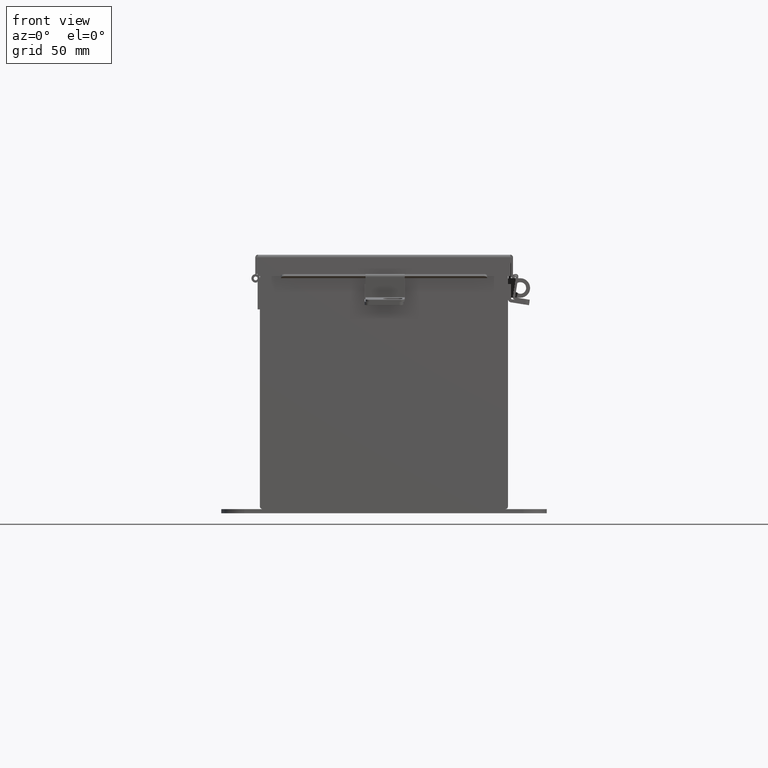
[diagram: clean part render]
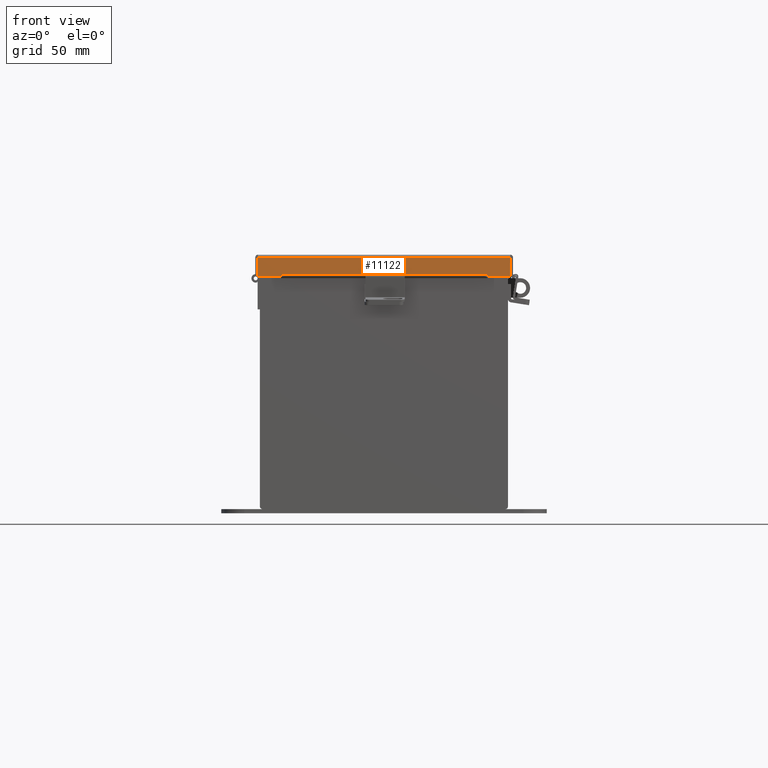
[diagram: same view with one face highlighted and labeled with its STEP entity id]
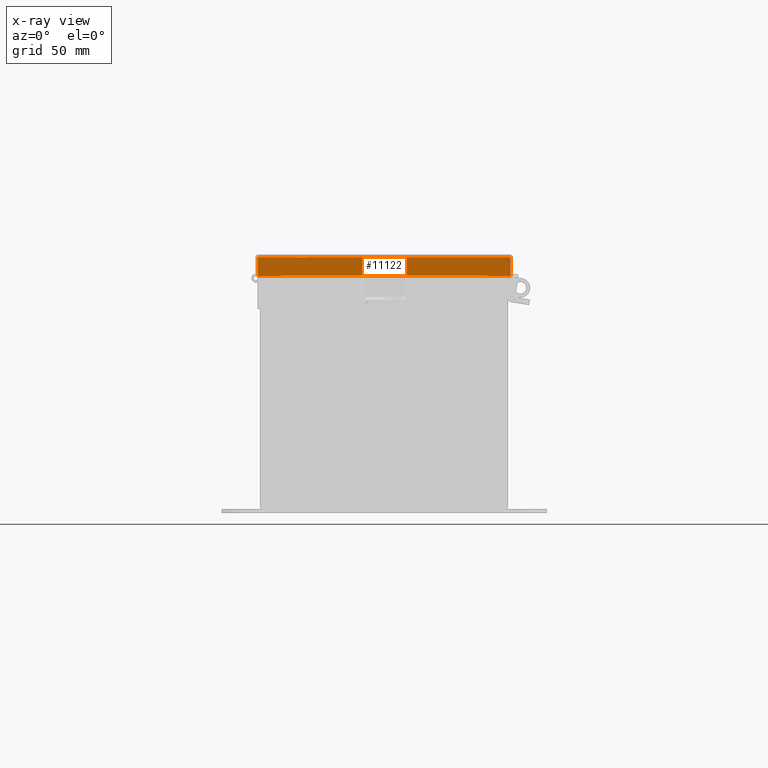
[diagram: x-ray of the same camera — body ghosted, the highlighted face saturated]
A machine part, front view. The second image highlights one B-rep face of the part: STEP entity #11122.
The next image is the same camera in x-ray: the body ghosted, the highlighted face saturated — about 0% of this face is hidden behind the body in this view.
In plain terms, the highlighted planar face has unit normal (0, 1, -0).
Its self-contained STEP definition (entity closure, byte-faithful):
#439 = CARTESIAN_POINT ( 'NONE',  ( -6.402768735150616900E-018, -9.156250000000001800, 0.6122999999999994000 ) ) ;
#903 = DIRECTION ( 'NONE',  ( 1.735493991486217300E-029, -3.569293475308519000E-015, 1.000000000000000000 ) ) ;
#996 = CARTESIAN_POINT ( 'NONE',  ( 3.324478932188146700, -9.156250000000001800, 0.5967115427318793200 ) ) ;
#1317 = LINE ( 'NONE', #2682, #12685 ) ;
#1505 = VECTOR ( 'NONE', #9911, 39.37007874015748100 ) ;
#1529 = LINE ( 'NONE', #18412, #4982 ) ;
#2145 = VECTOR ( 'NONE', #16462, 39.37007874015748100 ) ;
#2682 = CARTESIAN_POINT ( 'NONE',  ( -6.402768735150616900E-018, -9.156250000000001800, 0.6122999999999994000 ) ) ;
#3353 = VERTEX_POINT ( 'NONE', #14474 ) ;
#4186 = DIRECTION ( 'NONE',  ( -1.000000000000000000, 1.276935718578432000E-030, 8.216084191471054600E-018 ) ) ;
#4283 = VERTEX_POINT ( 'NONE', #9801 ) ;
#4518 = CARTESIAN_POINT ( 'NONE',  ( -4.074478932188157800, -9.156250000000000000, -1.092739197465705300E-015 ) ) ;
#4982 = VECTOR ( 'NONE', #15321, 39.37007874015748100 ) ;
#5559 = CARTESIAN_POINT ( 'NONE',  ( 4.074478932188161400, -9.156250000000001800, 0.6123000000000005100 ) ) ;
#5599 = VECTOR ( 'NONE', #11989, 39.37007874015748100 ) ;
#6342 = EDGE_CURVE ( 'NONE', #13516, #3353, #1317, .T. ) ;
#7089 = ORIENTED_EDGE ( 'NONE', *, *, #13147, .T. ) ;
#7318 = VERTEX_POINT ( 'NONE', #15476 ) ;
#7546 = ORIENTED_EDGE ( 'NONE', *, *, #7571, .F. ) ;
#7571 = EDGE_CURVE ( 'NONE', #11864, #7318, #13834, .T. ) ;
#7680 = VERTEX_POINT ( 'NONE', #11633 ) ;
#8272 = EDGE_LOOP ( 'NONE', ( #10490, #15994, #11525, #16127, #7089, #14617, #7546, #18828 ) ) ;
#8477 = CARTESIAN_POINT ( 'NONE',  ( 3.324478932188146700, -9.156249999999998200, 0.5967115427318793200 ) ) ;
#8540 = VERTEX_POINT ( 'NONE', #16929 ) ;
#8638 = CARTESIAN_POINT ( 'NONE',  ( -3.324478932188145800, -9.156250000000001800, 0.6122999999999994000 ) ) ;
#8744 = DIRECTION ( 'NONE',  ( 1.735493991486217600E-029, -3.569293475308519000E-015, 1.000000000000000000 ) ) ;
#8950 = CARTESIAN_POINT ( 'NONE',  ( -4.156250000000017800, -9.156250000000000000, 0.01300000000000010700 ) ) ;
#9056 = LINE ( 'NONE', #11995, #12071 ) ;
#9572 = LINE ( 'NONE', #17972, #5599 ) ;
#9782 = DIRECTION ( 'NONE',  ( -1.049583571054426400E-030, 1.000000000000000000, 3.569293475308519000E-015 ) ) ;
#9801 = CARTESIAN_POINT ( 'NONE',  ( -3.324478932188145800, -9.156250000000001800, 0.5967115427318782100 ) ) ;
#9819 = EDGE_CURVE ( 'NONE', #8540, #3353, #14066, .T. ) ;
#9911 = DIRECTION ( 'NONE',  ( 1.577721810442016300E-030, -2.102977566036094300E-013, 1.000000000000000000 ) ) ;
#9963 = EDGE_CURVE ( 'NONE', #15145, #7318, #11237, .T. ) ;
#10490 = ORIENTED_EDGE ( 'NONE', *, *, #16709, .F. ) ;
#10830 = DIRECTION ( 'NONE',  ( -1.000000000000000000, 1.276935718578432000E-030, 8.216084191471054600E-018 ) ) ;
#11122 = ADVANCED_FACE ( 'NONE', ( #14735 ), #15678, .F. ) ;
#11213 = CARTESIAN_POINT ( 'NONE',  ( -4.268512490100411300E-018, -9.156250000000000000, -3.278217592397115700E-014 ) ) ;
#11237 = LINE ( 'NONE', #439, #15238 ) ;
#11525 = ORIENTED_EDGE ( 'NONE', *, *, #9819, .F. ) ;
#11633 = CARTESIAN_POINT ( 'NONE',  ( 4.074478932188166700, -9.156250000000000000, 0.01300000000000885000 ) ) ;
#11864 = VERTEX_POINT ( 'NONE', #996 ) ;
#11989 = DIRECTION ( 'NONE',  ( 1.000000000000000000, -1.278004435517613800E-030, -0.0000000000000000000 ) ) ;
#11995 = CARTESIAN_POINT ( 'NONE',  ( -3.324478932188145800, -9.156250000000001800, 0.6122999999999994000 ) ) ;
#12071 = VECTOR ( 'NONE', #13522, 39.37007874015748100 ) ;
#12685 = VECTOR ( 'NONE', #4186, 39.37007874015748100 ) ;
#13147 = EDGE_CURVE ( 'NONE', #7680, #15145, #1529, .T. ) ;
#13516 = VERTEX_POINT ( 'NONE', #8638 ) ;
#13522 = DIRECTION ( 'NONE',  ( 1.401985044024086900E-013, 2.102977566036122000E-013, -1.000000000000000000 ) ) ;
#13834 = LINE ( 'NONE', #8477, #1505 ) ;
#14066 = LINE ( 'NONE', #4518, #17108 ) ;
#14474 = CARTESIAN_POINT ( 'NONE',  ( -4.074478932188157800, -9.156250000000001800, 0.6122999999999994000 ) ) ;
#14617 = ORIENTED_EDGE ( 'NONE', *, *, #9963, .T. ) ;
#14735 = FACE_OUTER_BOUND ( 'NONE', #8272, .T. ) ;
#15145 = VERTEX_POINT ( 'NONE', #5559 ) ;
#15238 = VECTOR ( 'NONE', #10830, 39.37007874015748100 ) ;
#15320 = EDGE_CURVE ( 'NONE', #7680, #8540, #18003, .T. ) ;
#15321 = DIRECTION ( 'NONE',  ( 1.735493991486217600E-029, -3.569293475308519000E-015, 1.000000000000000000 ) ) ;
#15350 = EDGE_CURVE ( 'NONE', #4283, #11864, #9572, .T. ) ;
#15476 = CARTESIAN_POINT ( 'NONE',  ( 3.324478932188148500, -9.156250000000001800, 0.6123000000000005100 ) ) ;
#15678 = PLANE ( 'NONE',  #16807 ) ;
#15994 = ORIENTED_EDGE ( 'NONE', *, *, #6342, .T. ) ;
#16127 = ORIENTED_EDGE ( 'NONE', *, *, #15320, .F. ) ;
#16462 = DIRECTION ( 'NONE',  ( -1.000000000000000000, 1.278004435517613800E-030, -0.0000000000000000000 ) ) ;
#16709 = EDGE_CURVE ( 'NONE', #13516, #4283, #9056, .T. ) ;
#16807 = AXIS2_PLACEMENT_3D ( 'NONE', #11213, #9782, #903 ) ;
#16929 = CARTESIAN_POINT ( 'NONE',  ( -4.074478932188152500, -9.156250000000000000, 0.01299999999999901400 ) ) ;
#17108 = VECTOR ( 'NONE', #8744, 39.37007874015748100 ) ;
#17972 = CARTESIAN_POINT ( 'NONE',  ( -3.324478932188148100, -9.156249999999998200, 0.5967115427318782100 ) ) ;
#18003 = LINE ( 'NONE', #8950, #2145 ) ;
#18412 = CARTESIAN_POINT ( 'NONE',  ( 4.074478932188161400, -9.156250000000000000, -2.404026234424551500E-014 ) ) ;
#18828 = ORIENTED_EDGE ( 'NONE', *, *, #15350, .F. ) ;